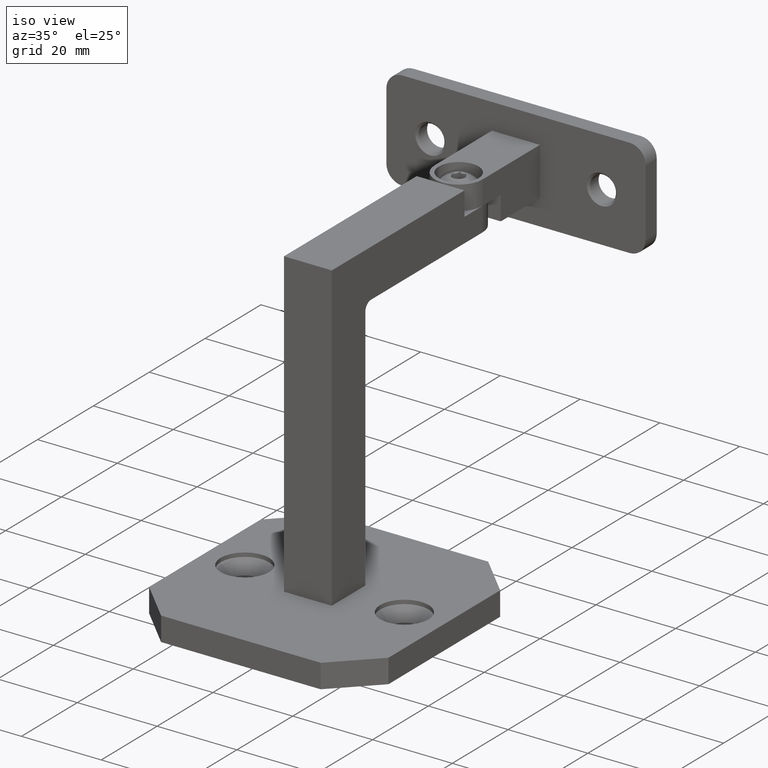
[diagram: clean part render]
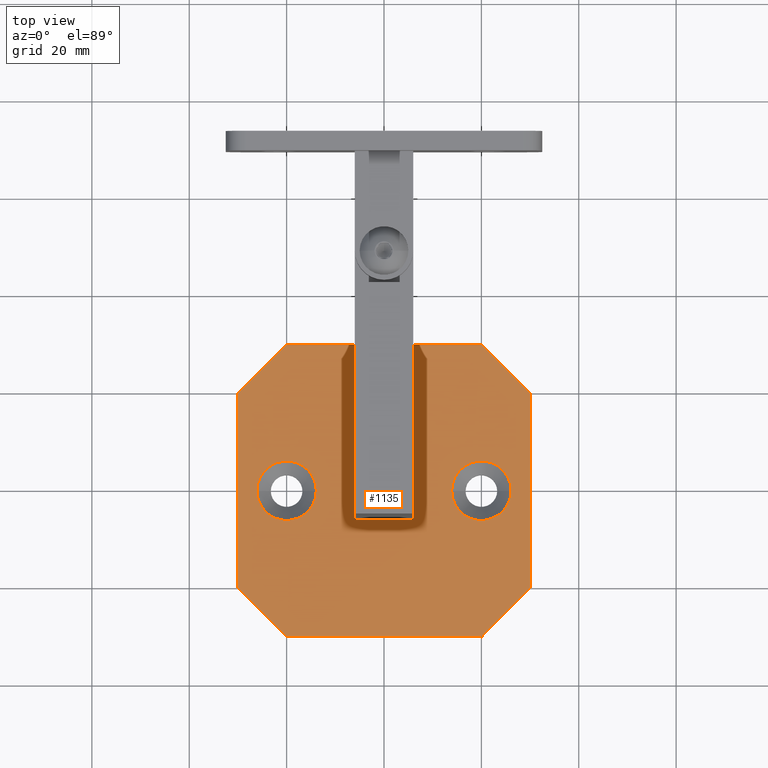
[diagram: tour spotlight — one face highlighted and labeled with its STEP entity id]
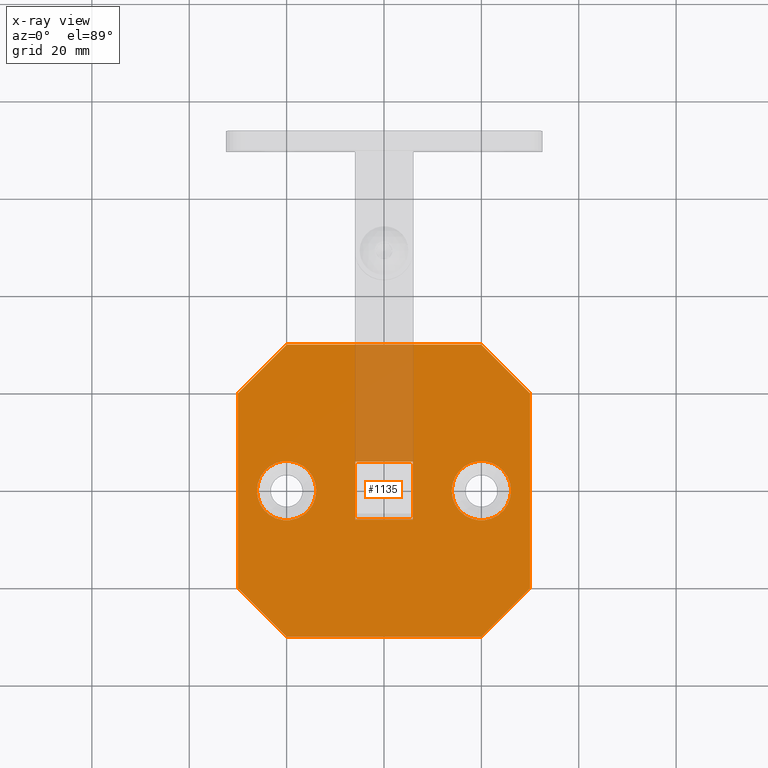
[diagram: x-ray of the same camera — body ghosted, this tour face saturated]
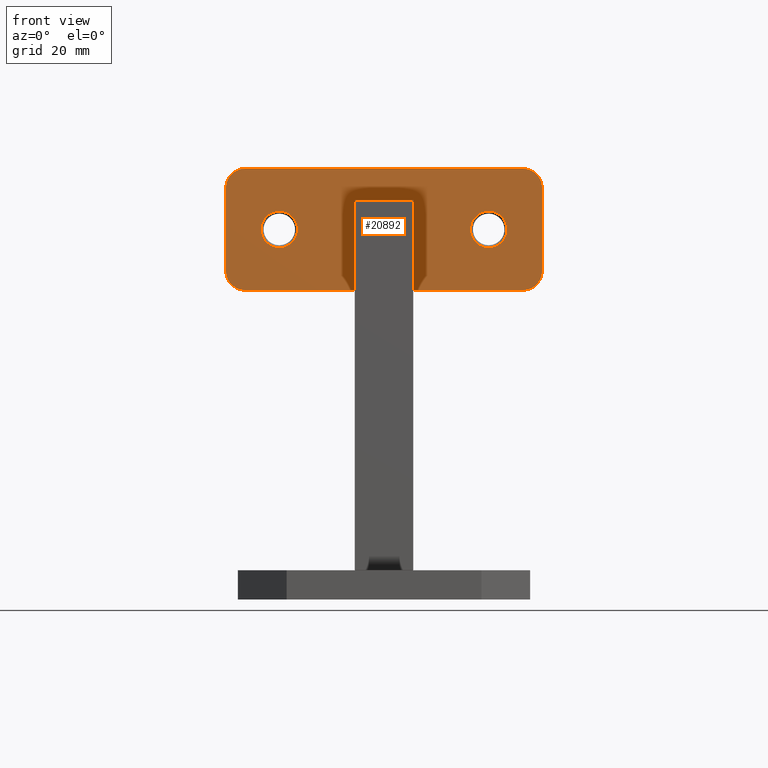
[diagram: tour spotlight — one face highlighted and labeled with its STEP entity id]
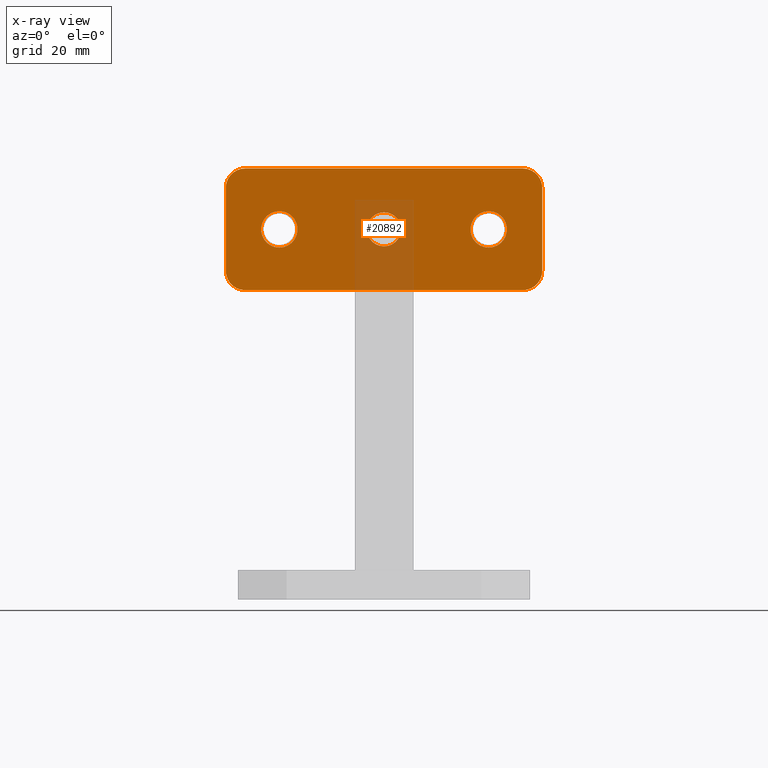
[diagram: x-ray of the same camera — body ghosted, this tour face saturated]
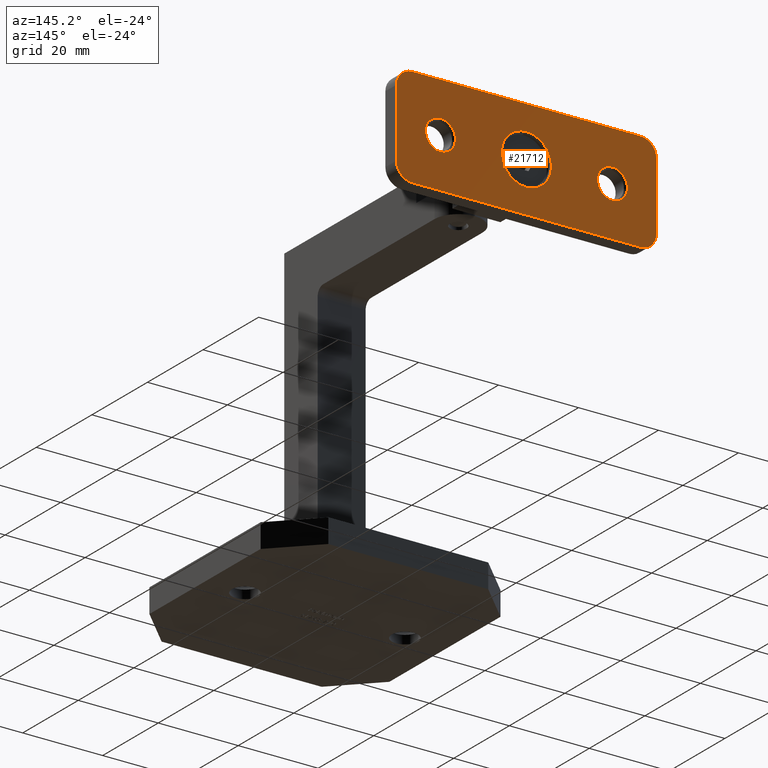
[diagram: tour spotlight — one face highlighted and labeled with its STEP entity id]
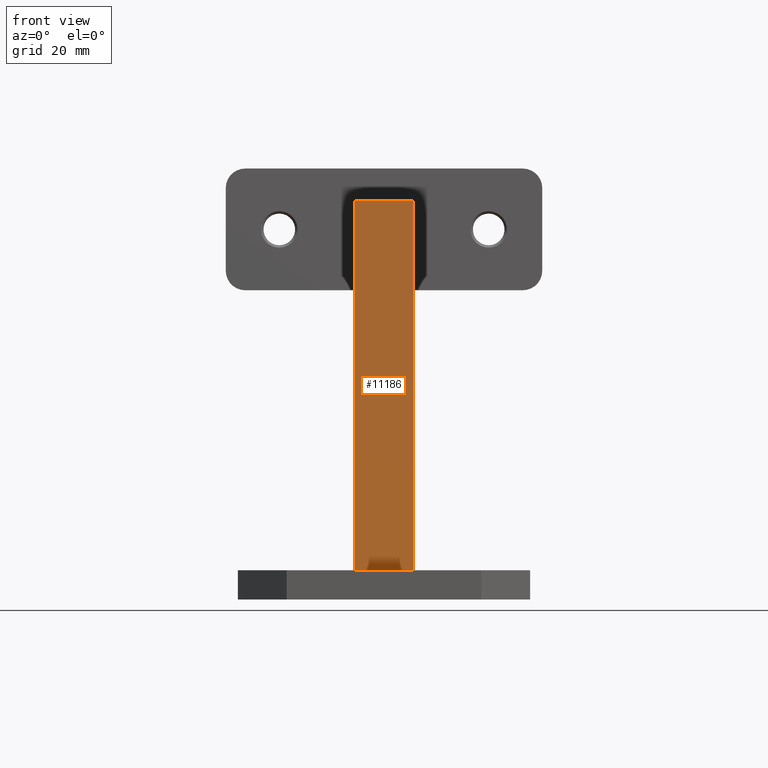
[diagram: tour spotlight — one face highlighted and labeled with its STEP entity id]
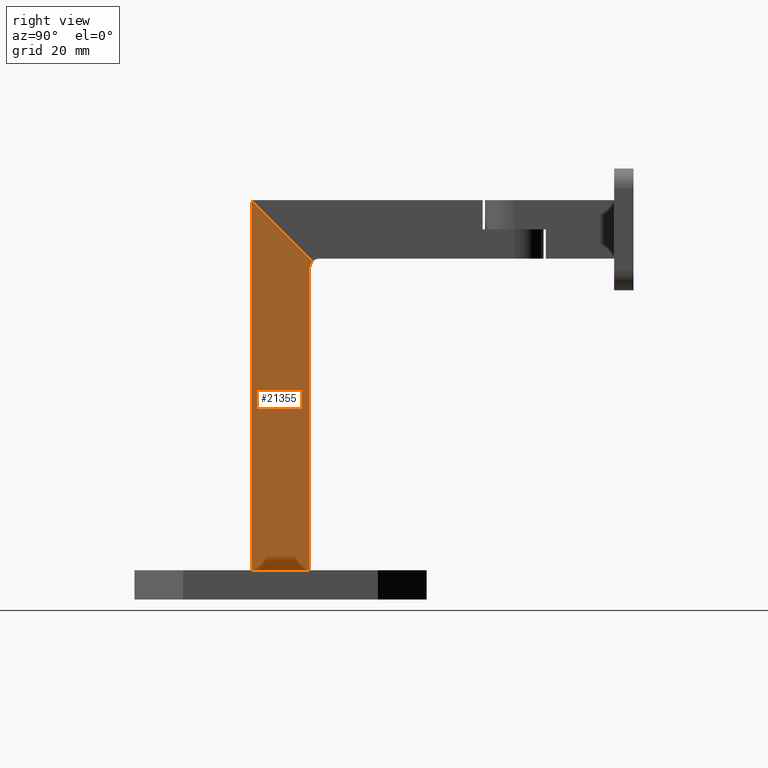
[diagram: tour spotlight — one face highlighted and labeled with its STEP entity id]
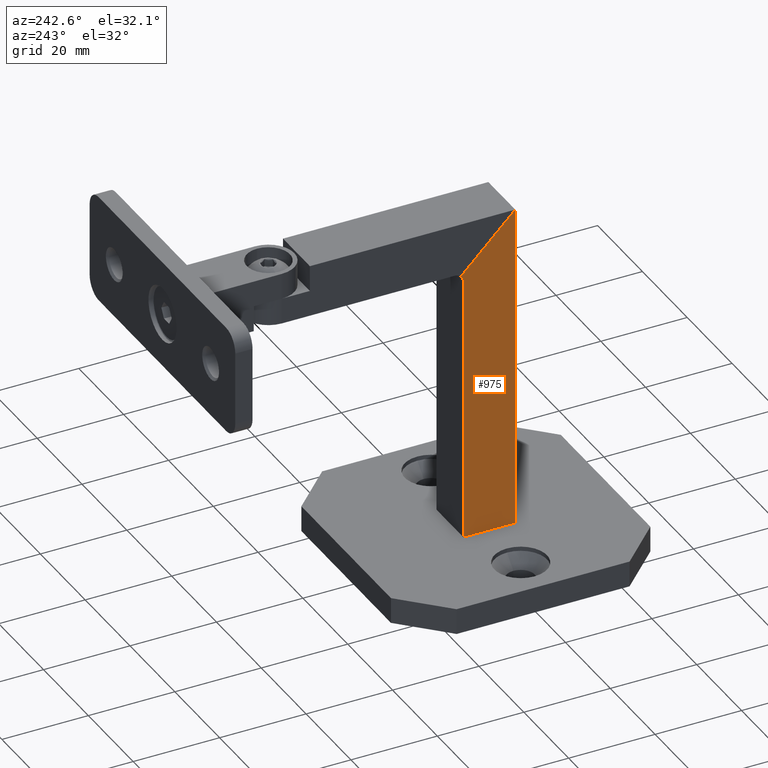
[diagram: tour spotlight — one face highlighted and labeled with its STEP entity id]
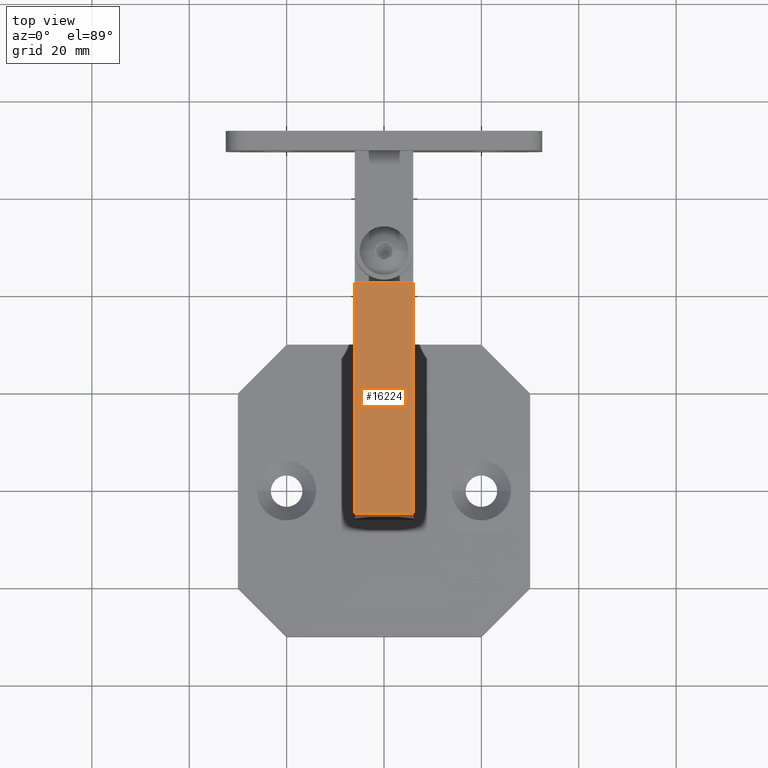
[diagram: tour spotlight — one face highlighted and labeled with its STEP entity id]
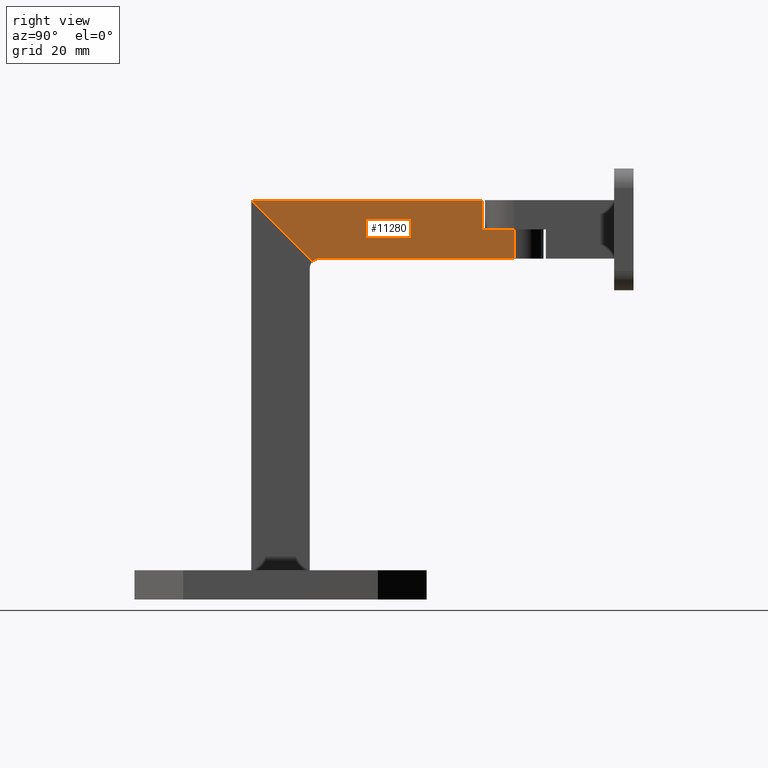
[diagram: tour spotlight — one face highlighted and labeled with its STEP entity id]
A machine part: a face-by-face anatomy tour. The part has 441 B-rep faces; the first image is the clean iso view, then the 8 largest visible faces are spotlighted one at a time (largest first), each with its STEP entity span.

Face 1 — top view, entity #1135. An x-ray twin of the same camera follows (body ghosted, this face saturated) — the face is partly hidden behind the body. In plain terms, the highlighted planar face has unit normal (0, 0, 1).
Definition (entity closure, byte-faithful):
#216 = VERTEX_POINT ( 'NONE', #20497 ) ;
#331 = EDGE_CURVE ( 'NONE', #9592, #14569, #17232, .T. ) ;
#814 = ORIENTED_EDGE ( 'NONE', *, *, #8448, .T. ) ;
#974 = DIRECTION ( 'NONE',  ( -1.000000000000000000, -0.000000000000000000, -0.000000000000000000 ) ) ;
#1135 = ADVANCED_FACE ( 'NONE', ( #6094, #15710, #4869, #12662 ), #6865, .T. ) ;
#1518 = AXIS2_PLACEMENT_3D ( 'NONE', #1523, #12965, #2642 ) ;
#1523 = CARTESIAN_POINT ( 'NONE',  ( 20.00000000000000000, 0.000000000000000000, 3.000000000000001776 ) ) ;
#1573 = CARTESIAN_POINT ( 'NONE',  ( 29.99999999999998579, 30.00000000000000711, 3.000000000000000000 ) ) ;
#1617 = EDGE_LOOP ( 'NONE', ( #24796, #814, #8797, #1944, #9276, #10733, #10919, #13337 ) ) ;
#1944 = ORIENTED_EDGE ( 'NONE', *, *, #23877, .T. ) ;
#2058 = CARTESIAN_POINT ( 'NONE',  ( 0.000000000000000000, 5.949999999999999289, 3.000000000000000444 ) ) ;
#2201 = DIRECTION ( 'NONE',  ( 1.000000000000000000, 0.000000000000000000, 0.000000000000000000 ) ) ;
#2315 = VERTEX_POINT ( 'NONE', #24493 ) ;
#2403 = EDGE_CURVE ( 'NONE', #3493, #21995, #20162, .T. ) ;
#2450 = DIRECTION ( 'NONE',  ( 1.000000000000000000, 0.000000000000000000, 0.000000000000000000 ) ) ;
#2461 = VECTOR ( 'NONE', #16916, 1000.000000000000000 ) ;
#2513 = VECTOR ( 'NONE', #17087, 1000.000000000000000 ) ;
#2642 = DIRECTION ( 'NONE',  ( 1.000000000000000000, 0.000000000000000000, 0.000000000000000000 ) ) ;
#2827 = CARTESIAN_POINT ( 'NONE',  ( -30.00000000000000711, -19.99999999999994671, 3.000000000000000000 ) ) ;
#3163 = CARTESIAN_POINT ( 'NONE',  ( -30.00000000000001066, 30.00000000000000711, 3.000000000000000000 ) ) ;
#3493 = VERTEX_POINT ( 'NONE', #11217 ) ;
#3655 = EDGE_CURVE ( 'NONE', #2315, #216, #13522, .T. ) ;
#4313 = CARTESIAN_POINT ( 'NONE',  ( 24.99999999999993250, -25.00000000000001066, 3.000000000000000000 ) ) ;
#4361 = EDGE_CURVE ( 'NONE', #23370, #8922, #14109, .T. ) ;
#4389 = ORIENTED_EDGE ( 'NONE', *, *, #2403, .F. ) ;
#4486 = CARTESIAN_POINT ( 'NONE',  ( -30.00000000000000711, -29.99999999999999645, 3.000000000000000000 ) ) ;
#4665 = CARTESIAN_POINT ( 'NONE',  ( 19.99999999999992539, -30.00000000000000000, 3.000000000000000000 ) ) ;
#4816 = DIRECTION ( 'NONE',  ( -1.000000000000000000, -0.000000000000000000, -0.000000000000000000 ) ) ;
#4869 = FACE_BOUND ( 'NONE', #17619, .T. ) ;
#5124 = DIRECTION ( 'NONE',  ( 1.000000000000000000, 0.000000000000000000, 0.000000000000000000 ) ) ;
#5131 = DIRECTION ( 'NONE',  ( 1.000000000000000000, 0.000000000000000000, 0.000000000000000000 ) ) ;
#5398 = VECTOR ( 'NONE', #974, 1000.000000000000000 ) ;
#5727 = VERTEX_POINT ( 'NONE', #4665 ) ;
#5891 = LINE ( 'NONE', #8282, #9781 ) ;
#5898 = CARTESIAN_POINT ( 'NONE',  ( -5.949999999999997513, -5.950000000000001066, 3.000000000000000444 ) ) ;
#5985 = DIRECTION ( 'NONE',  ( 1.445602896647339163E-16, 1.000000000000000000, 0.000000000000000000 ) ) ;
#5994 = AXIS2_PLACEMENT_3D ( 'NONE', #20353, #22186, #10694 ) ;
#6056 = CARTESIAN_POINT ( 'NONE',  ( -20.00000000000000000, 0.000000000000000000, 3.000000000000001776 ) ) ;
#6094 = FACE_BOUND ( 'NONE', #18479, .T. ) ;
#6641 = EDGE_CURVE ( 'NONE', #7022, #22026, #10716, .T. ) ;
#6865 = PLANE ( 'NONE',  #5994 ) ;
#6915 = DIRECTION ( 'NONE',  ( -0.000000000000000000, -0.000000000000000000, 1.000000000000000000 ) ) ;
#6941 = EDGE_CURVE ( 'NONE', #7743, #9592, #14038, .T. ) ;
#7022 = VERTEX_POINT ( 'NONE', #19512 ) ;
#7743 = VERTEX_POINT ( 'NONE', #11536 ) ;
#8225 = DIRECTION ( 'NONE',  ( -0.000000000000000000, -0.000000000000000000, 1.000000000000000000 ) ) ;
#8282 = CARTESIAN_POINT ( 'NONE',  ( -24.99999999999995737, 25.00000000000006395, 3.000000000000000000 ) ) ;
#8448 = EDGE_CURVE ( 'NONE', #5727, #15167, #16276, .T. ) ;
#8667 = LINE ( 'NONE', #5898, #21848 ) ;
#8797 = ORIENTED_EDGE ( 'NONE', *, *, #9847, .T. ) ;
#8920 = VERTEX_POINT ( 'NONE', #21147 ) ;
#8922 = VERTEX_POINT ( 'NONE', #2058 ) ;
#9276 = ORIENTED_EDGE ( 'NONE', *, *, #16229, .T. ) ;
#9286 = DIRECTION ( 'NONE',  ( -0.7071067811865461294, 0.7071067811865489050, -0.000000000000000000 ) ) ;
#9537 = ORIENTED_EDGE ( 'NONE', *, *, #6641, .T. ) ;
#9592 = VERTEX_POINT ( 'NONE', #2827 ) ;
#9781 = VECTOR ( 'NONE', #17617, 1000.000000000000114 ) ;
#9813 = EDGE_CURVE ( 'NONE', #23370, #7022, #22235, .T. ) ;
#9846 = LINE ( 'NONE', #12211, #19739 ) ;
#9847 = EDGE_CURVE ( 'NONE', #15167, #12133, #17782, .T. ) ;
#9870 = VECTOR ( 'NONE', #9286, 1000.000000000000114 ) ;
#9902 = CARTESIAN_POINT ( 'NONE',  ( 19.99999999999997513, 30.00000000000001421, 3.000000000000000000 ) ) ;
#10133 = ORIENTED_EDGE ( 'NONE', *, *, #10407, .F. ) ;
#10212 = CARTESIAN_POINT ( 'NONE',  ( -5.949999999999997513, -5.950000000000001066, 3.000000000000000444 ) ) ;
#10407 = EDGE_CURVE ( 'NONE', #21995, #3493, #24011, .T. ) ;
#10504 = DIRECTION ( 'NONE',  ( 1.000000000000000000, 0.000000000000000000, 0.000000000000000000 ) ) ;
#10609 = CARTESIAN_POINT ( 'NONE',  ( 29.99999999999998934, 19.99999999999997513, 3.000000000000000000 ) ) ;
#10694 = DIRECTION ( 'NONE',  ( 1.000000000000000000, 0.000000000000000000, 0.000000000000000000 ) ) ;
#10712 = ORIENTED_EDGE ( 'NONE', *, *, #22757, .F. ) ;
#10716 = LINE ( 'NONE', #21922, #19754 ) ;
#10733 = ORIENTED_EDGE ( 'NONE', *, *, #18185, .T. ) ;
#10919 = ORIENTED_EDGE ( 'NONE', *, *, #6941, .T. ) ;
#11217 = CARTESIAN_POINT ( 'NONE',  ( 26.10000000000000142, 0.000000000000000000, 3.000000000000001776 ) ) ;
#11252 = DIRECTION ( 'NONE',  ( 5.782411586589357392E-17, -1.000000000000000000, 0.000000000000000000 ) ) ;
#11526 = CARTESIAN_POINT ( 'NONE',  ( 5.950000000000003730, 5.949999999999999289, 3.000000000000000444 ) ) ;
#11536 = CARTESIAN_POINT ( 'NONE',  ( -30.00000000000001066, 20.00000000000003197, 3.000000000000000000 ) ) ;
#11589 = CARTESIAN_POINT ( 'NONE',  ( -30.00000000000001066, 30.00000000000000711, 3.000000000000000000 ) ) ;
#12020 = DIRECTION ( 'NONE',  ( 0.7071067811865486830, 0.7071067811865464625, -0.000000000000000000 ) ) ;
#12036 = VECTOR ( 'NONE', #14909, 1000.000000000000000 ) ;
#12133 = VERTEX_POINT ( 'NONE', #10609 ) ;
#12211 = CARTESIAN_POINT ( 'NONE',  ( -5.949999999999995737, 5.949999999999995737, 3.000000000000000444 ) ) ;
#12521 = CARTESIAN_POINT ( 'NONE',  ( 6.082703296142693894, 5.949999999999999289, 3.000000000000000444 ) ) ;
#12662 = FACE_OUTER_BOUND ( 'NONE', #1617, .T. ) ;
#12738 = CARTESIAN_POINT ( 'NONE',  ( -20.00000000000000000, 0.000000000000000000, 3.000000000000001776 ) ) ;
#12823 = DIRECTION ( 'NONE',  ( -0.000000000000000000, -0.000000000000000000, 1.000000000000000000 ) ) ;
#12965 = DIRECTION ( 'NONE',  ( -0.000000000000000000, -0.000000000000000000, 1.000000000000000000 ) ) ;
#13239 = EDGE_CURVE ( 'NONE', #22026, #22443, #8667, .T. ) ;
#13337 = ORIENTED_EDGE ( 'NONE', *, *, #331, .T. ) ;
#13522 = CIRCLE ( 'NONE', #22232, 6.100000000000001421 ) ;
#13678 = AXIS2_PLACEMENT_3D ( 'NONE', #12738, #12823, #5124 ) ;
#14038 = LINE ( 'NONE', #11589, #19151 ) ;
#14109 = LINE ( 'NONE', #12521, #5398 ) ;
#14569 = VERTEX_POINT ( 'NONE', #17420 ) ;
#14909 = DIRECTION ( 'NONE',  ( -1.445602896647338424E-16, -1.000000000000000000, 0.000000000000000000 ) ) ;
#15154 = CARTESIAN_POINT ( 'NONE',  ( 5.950000000000003730, 5.949999999999999289, 3.000000000000000444 ) ) ;
#15167 = VERTEX_POINT ( 'NONE', #17389 ) ;
#15710 = FACE_BOUND ( 'NONE', #22178, .T. ) ;
#15755 = CARTESIAN_POINT ( 'NONE',  ( 13.89999999999999858, 7.470345474798856265E-16, 3.000000000000001776 ) ) ;
#16164 = CIRCLE ( 'NONE', #13678, 6.100000000000001421 ) ;
#16229 = EDGE_CURVE ( 'NONE', #20311, #8920, #22407, .T. ) ;
#16276 = LINE ( 'NONE', #4313, #22253 ) ;
#16795 = EDGE_CURVE ( 'NONE', #14569, #5727, #22698, .T. ) ;
#16916 = DIRECTION ( 'NONE',  ( -1.734723475976807094E-16, 1.000000000000000000, -0.000000000000000000 ) ) ;
#17087 = DIRECTION ( 'NONE',  ( 0.7071067811865459074, -0.7071067811865491270, 0.000000000000000000 ) ) ;
#17232 = LINE ( 'NONE', #24756, #2513 ) ;
#17360 = VECTOR ( 'NONE', #4816, 1000.000000000000000 ) ;
#17389 = CARTESIAN_POINT ( 'NONE',  ( 29.99999999999999645, -19.99999999999995737, 3.000000000000000000 ) ) ;
#17420 = CARTESIAN_POINT ( 'NONE',  ( -20.00000000000000355, -30.00000000000000000, 3.000000000000000000 ) ) ;
#17617 = DIRECTION ( 'NONE',  ( -0.7071067811865489050, -0.7071067811865460184, -0.000000000000000000 ) ) ;
#17619 = EDGE_LOOP ( 'NONE', ( #4389, #10133 ) ) ;
#17782 = LINE ( 'NONE', #1573, #2461 ) ;
#18151 = ORIENTED_EDGE ( 'NONE', *, *, #13239, .T. ) ;
#18185 = EDGE_CURVE ( 'NONE', #8920, #7743, #5891, .T. ) ;
#18274 = LINE ( 'NONE', #20748, #9870 ) ;
#18399 = CARTESIAN_POINT ( 'NONE',  ( 20.00000000000000000, 0.000000000000000000, 3.000000000000001776 ) ) ;
#18479 = EDGE_LOOP ( 'NONE', ( #24704, #9537, #18151, #24713, #21859 ) ) ;
#18715 = ORIENTED_EDGE ( 'NONE', *, *, #3655, .F. ) ;
#19151 = VECTOR ( 'NONE', #11252, 1000.000000000000000 ) ;
#19433 = VECTOR ( 'NONE', #10504, 1000.000000000000000 ) ;
#19502 = CARTESIAN_POINT ( 'NONE',  ( -5.949999999999995737, 5.949999999999995737, 3.000000000000000444 ) ) ;
#19512 = CARTESIAN_POINT ( 'NONE',  ( 5.950000000000001954, -5.950000000000009059, 3.000000000000000444 ) ) ;
#19739 = VECTOR ( 'NONE', #2450, 1000.000000000000000 ) ;
#19754 = VECTOR ( 'NONE', #20174, 1000.000000000000000 ) ;
#20162 = CIRCLE ( 'NONE', #1518, 6.100000000000001421 ) ;
#20174 = DIRECTION ( 'NONE',  ( -1.000000000000000000, 7.228014483236695569E-16, 0.000000000000000000 ) ) ;
#20311 = VERTEX_POINT ( 'NONE', #9902 ) ;
#20353 = CARTESIAN_POINT ( 'NONE',  ( 0.000000000000000000, 0.000000000000000000, 3.000000000000000000 ) ) ;
#20497 = CARTESIAN_POINT ( 'NONE',  ( -26.10000000000000142, 7.470345474798859223E-16, 3.000000000000001776 ) ) ;
#20748 = CARTESIAN_POINT ( 'NONE',  ( 25.00000000000004263, 24.99999999999993960, 3.000000000000000000 ) ) ;
#21147 = CARTESIAN_POINT ( 'NONE',  ( -19.99999999999999289, 30.00000000000000711, 3.000000000000000000 ) ) ;
#21848 = VECTOR ( 'NONE', #5985, 1000.000000000000000 ) ;
#21859 = ORIENTED_EDGE ( 'NONE', *, *, #4361, .F. ) ;
#21922 = CARTESIAN_POINT ( 'NONE',  ( 5.950000000000001954, -5.950000000000009059, 3.000000000000000444 ) ) ;
#21995 = VERTEX_POINT ( 'NONE', #15755 ) ;
#22026 = VERTEX_POINT ( 'NONE', #10212 ) ;
#22178 = EDGE_LOOP ( 'NONE', ( #18715, #10712 ) ) ;
#22186 = DIRECTION ( 'NONE',  ( -0.000000000000000000, 0.000000000000000000, 1.000000000000000000 ) ) ;
#22232 = AXIS2_PLACEMENT_3D ( 'NONE', #6056, #8225, #2201 ) ;
#22235 = LINE ( 'NONE', #15154, #12036 ) ;
#22253 = VECTOR ( 'NONE', #12020, 1000.000000000000000 ) ;
#22407 = LINE ( 'NONE', #3163, #17360 ) ;
#22443 = VERTEX_POINT ( 'NONE', #19502 ) ;
#22698 = LINE ( 'NONE', #4486, #19433 ) ;
#22757 = EDGE_CURVE ( 'NONE', #216, #2315, #16164, .T. ) ;
#23317 = AXIS2_PLACEMENT_3D ( 'NONE', #18399, #6915, #5131 ) ;
#23370 = VERTEX_POINT ( 'NONE', #11526 ) ;
#23877 = EDGE_CURVE ( 'NONE', #12133, #20311, #18274, .T. ) ;
#24011 = CIRCLE ( 'NONE', #23317, 6.100000000000001421 ) ;
#24493 = CARTESIAN_POINT ( 'NONE',  ( -13.89999999999999858, 0.000000000000000000, 3.000000000000001776 ) ) ;
#24625 = EDGE_CURVE ( 'NONE', #22443, #8922, #9846, .T. ) ;
#24704 = ORIENTED_EDGE ( 'NONE', *, *, #9813, .T. ) ;
#24713 = ORIENTED_EDGE ( 'NONE', *, *, #24625, .T. ) ;
#24756 = CARTESIAN_POINT ( 'NONE',  ( -25.00000000000004619, -24.99999999999993250, 3.000000000000000000 ) ) ;
#24796 = ORIENTED_EDGE ( 'NONE', *, *, #16795, .T. ) ;

Face 2 — front view, entity #20892. An x-ray twin of the same camera follows (body ghosted, this face saturated) — the face is partly hidden behind the body. In plain terms, the highlighted planar face has unit normal (0, 1, 0).
Definition (entity closure, byte-faithful):
#59 = CIRCLE ( 'NONE', #7936, 3.500000000000010214 ) ;
#224 = VECTOR ( 'NONE', #10682, 1000.000000000000000 ) ;
#246 = CARTESIAN_POINT ( 'NONE',  ( -32.50000000000000000, -2.000000000000001776, -8.500000000000007105 ) ) ;
#625 = CIRCLE ( 'NONE', #2178, 3.500000000000010214 ) ;
#1057 = EDGE_CURVE ( 'NONE', #14716, #22155, #9395, .T. ) ;
#1241 = CARTESIAN_POINT ( 'NONE',  ( -32.50000000000000000, -2.000000000000001776, 12.49999999999999645 ) ) ;
#1331 = AXIS2_PLACEMENT_3D ( 'NONE', #5878, #19229, #7726 ) ;
#1341 = CIRCLE ( 'NONE', #12952, 3.749999999999989342 ) ;
#1610 = VERTEX_POINT ( 'NONE', #5357 ) ;
#1638 = ORIENTED_EDGE ( 'NONE', *, *, #21866, .F. ) ;
#1904 = DIRECTION ( 'NONE',  ( -0.000000000000000000, -1.000000000000000000, -0.000000000000000000 ) ) ;
#1962 = EDGE_CURVE ( 'NONE', #11704, #19097, #59, .T. ) ;
#2177 = DIRECTION ( 'NONE',  ( 0.000000000000000000, 0.000000000000000000, 1.000000000000000000 ) ) ;
#2178 = AXIS2_PLACEMENT_3D ( 'NONE', #4080, #17530, #6030 ) ;
#2370 = DIRECTION ( 'NONE',  ( 0.000000000000000000, 1.000000000000000000, 0.000000000000000000 ) ) ;
#2538 = ORIENTED_EDGE ( 'NONE', *, *, #13347, .F. ) ;
#2688 = CIRCLE ( 'NONE', #20632, 4.000000000000000000 ) ;
#2815 = VERTEX_POINT ( 'NONE', #13457 ) ;
#3015 = CARTESIAN_POINT ( 'NONE',  ( -32.50000000000000000, -2.000000000000001776, -12.50000000000000355 ) ) ;
#3830 = CARTESIAN_POINT ( 'NONE',  ( 21.50000000000000000, -2.000000000000001776, 0.000000000000000000 ) ) ;
#3907 = DIRECTION ( 'NONE',  ( 0.000000000000000000, 0.000000000000000000, 1.000000000000000000 ) ) ;
#3930 = EDGE_CURVE ( 'NONE', #10448, #8033, #12001, .T. ) ;
#3960 = EDGE_CURVE ( 'NONE', #19097, #11704, #625, .T. ) ;
#4080 = CARTESIAN_POINT ( 'NONE',  ( 0.000000000000000000, -2.000000000000001776, 0.000000000000000000 ) ) ;
#4107 = CARTESIAN_POINT ( 'NONE',  ( -21.50000000000000000, -2.000000000000001776, 3.749999999999989342 ) ) ;
#4269 = CARTESIAN_POINT ( 'NONE',  ( -21.50000000000000000, -2.000000000000001776, -3.749999999999989342 ) ) ;
#4351 = ORIENTED_EDGE ( 'NONE', *, *, #16264, .F. ) ;
#4468 = CARTESIAN_POINT ( 'NONE',  ( 4.286263797015748921E-16, -2.000000000000001776, -3.500000000000010658 ) ) ;
#4575 = EDGE_CURVE ( 'NONE', #9491, #22155, #2688, .T. ) ;
#5134 = CIRCLE ( 'NONE', #9680, 4.000000000000000000 ) ;
#5357 = CARTESIAN_POINT ( 'NONE',  ( 21.50000000000000000, -2.000000000000001776, -3.749999999999989342 ) ) ;
#5649 = DIRECTION ( 'NONE',  ( 0.000000000000000000, 0.000000000000000000, 1.000000000000000000 ) ) ;
#5712 = VECTOR ( 'NONE', #19414, 1000.000000000000000 ) ;
#5835 = ORIENTED_EDGE ( 'NONE', *, *, #19896, .T. ) ;
#5878 = CARTESIAN_POINT ( 'NONE',  ( 28.49999999999999645, -2.000000000000001776, -8.500000000000007105 ) ) ;
#5914 = ORIENTED_EDGE ( 'NONE', *, *, #3960, .T. ) ;
#5947 = DIRECTION ( 'NONE',  ( -0.000000000000000000, -1.000000000000000000, -0.000000000000000000 ) ) ;
#6000 = CARTESIAN_POINT ( 'NONE',  ( -32.50000000000000000, -2.000000000000001776, -12.50000000000000355 ) ) ;
#6030 = DIRECTION ( 'NONE',  ( 0.000000000000000000, 0.000000000000000000, 1.000000000000000000 ) ) ;
#6311 = LINE ( 'NONE', #6000, #5712 ) ;
#6392 = ORIENTED_EDGE ( 'NONE', *, *, #8808, .T. ) ;
#6610 = AXIS2_PLACEMENT_3D ( 'NONE', #11424, #21016, #7775 ) ;
#6770 = DIRECTION ( 'NONE',  ( -1.000000000000000000, -0.000000000000000000, -0.000000000000000000 ) ) ;
#7579 = AXIS2_PLACEMENT_3D ( 'NONE', #18989, #20812, #5649 ) ;
#7726 = DIRECTION ( 'NONE',  ( 0.000000000000000000, 0.000000000000000000, 1.000000000000000000 ) ) ;
#7775 = DIRECTION ( 'NONE',  ( 0.000000000000000000, 0.000000000000000000, 1.000000000000000000 ) ) ;
#7936 = AXIS2_PLACEMENT_3D ( 'NONE', #19788, #7965, #17540 ) ;
#7965 = DIRECTION ( 'NONE',  ( -0.000000000000000000, 1.000000000000000000, -0.000000000000000000 ) ) ;
#8033 = VERTEX_POINT ( 'NONE', #14570 ) ;
#8223 = PLANE ( 'NONE',  #12371 ) ;
#8518 = CARTESIAN_POINT ( 'NONE',  ( -28.50000000000000000, -2.000000000000001776, -12.50000000000000355 ) ) ;
#8701 = DIRECTION ( 'NONE',  ( 0.000000000000000000, 0.000000000000000000, 1.000000000000000000 ) ) ;
#8808 = EDGE_CURVE ( 'NONE', #22974, #24539, #23470, .T. ) ;
#8954 = CARTESIAN_POINT ( 'NONE',  ( 21.50000000000000000, -2.000000000000001776, 0.000000000000000000 ) ) ;
#9395 = LINE ( 'NONE', #3015, #24670 ) ;
#9491 = VERTEX_POINT ( 'NONE', #246 ) ;
#9680 = AXIS2_PLACEMENT_3D ( 'NONE', #19338, #13363, #9779 ) ;
#9779 = DIRECTION ( 'NONE',  ( 2.602085213965210642E-15, 0.000000000000000000, 1.000000000000000000 ) ) ;
#9992 = EDGE_CURVE ( 'NONE', #24539, #22974, #22525, .T. ) ;
#9994 = EDGE_CURVE ( 'NONE', #18004, #12194, #5134, .T. ) ;
#10448 = VERTEX_POINT ( 'NONE', #10903 ) ;
#10562 = CARTESIAN_POINT ( 'NONE',  ( 32.50000000000000000, -2.000000000000001776, -12.50000000000000355 ) ) ;
#10682 = DIRECTION ( 'NONE',  ( 1.000000000000000000, 0.000000000000000000, 0.000000000000000000 ) ) ;
#10739 = CIRCLE ( 'NONE', #1331, 4.000000000000000000 ) ;
#10863 = CARTESIAN_POINT ( 'NONE',  ( 0.000000000000000000, -2.000000000000001776, 3.500000000000010214 ) ) ;
#10903 = CARTESIAN_POINT ( 'NONE',  ( -28.50000000000000000, -2.000000000000001776, 12.49999999999999645 ) ) ;
#11244 = CARTESIAN_POINT ( 'NONE',  ( -28.50000000000000000, -2.000000000000001776, -8.500000000000007105 ) ) ;
#11424 = CARTESIAN_POINT ( 'NONE',  ( -21.50000000000000000, -2.000000000000001776, 0.000000000000000000 ) ) ;
#11704 = VERTEX_POINT ( 'NONE', #10863 ) ;
#11893 = CARTESIAN_POINT ( 'NONE',  ( 0.000000000000000000, -2.000000000000001776, 0.000000000000000000 ) ) ;
#12001 = CIRCLE ( 'NONE', #16793, 4.000000000000000000 ) ;
#12055 = DIRECTION ( 'NONE',  ( 0.000000000000000000, -0.000000000000000000, 1.000000000000000000 ) ) ;
#12192 = ORIENTED_EDGE ( 'NONE', *, *, #3930, .T. ) ;
#12194 = VERTEX_POINT ( 'NONE', #20357 ) ;
#12371 = AXIS2_PLACEMENT_3D ( 'NONE', #11893, #2370, #12055 ) ;
#12581 = AXIS2_PLACEMENT_3D ( 'NONE', #8954, #22334, #8701 ) ;
#12952 = AXIS2_PLACEMENT_3D ( 'NONE', #3830, #13623, #13367 ) ;
#13089 = ORIENTED_EDGE ( 'NONE', *, *, #13572, .T. ) ;
#13092 = ORIENTED_EDGE ( 'NONE', *, *, #9992, .T. ) ;
#13347 = EDGE_CURVE ( 'NONE', #18004, #20272, #23940, .T. ) ;
#13363 = DIRECTION ( 'NONE',  ( -0.000000000000000000, -1.000000000000000000, -0.000000000000000000 ) ) ;
#13367 = DIRECTION ( 'NONE',  ( 0.000000000000000000, 0.000000000000000000, 1.000000000000000000 ) ) ;
#13457 = CARTESIAN_POINT ( 'NONE',  ( 21.50000000000000000, -2.000000000000001776, 3.749999999999989342 ) ) ;
#13566 = CARTESIAN_POINT ( 'NONE',  ( 32.50000000000000000, -2.000000000000001776, 8.499999999999992895 ) ) ;
#13572 = EDGE_CURVE ( 'NONE', #14716, #20272, #10739, .T. ) ;
#13623 = DIRECTION ( 'NONE',  ( 0.000000000000000000, 1.000000000000000000, 0.000000000000000000 ) ) ;
#14570 = CARTESIAN_POINT ( 'NONE',  ( -32.50000000000000000, -2.000000000000001776, 8.499999999999992895 ) ) ;
#14716 = VERTEX_POINT ( 'NONE', #21947 ) ;
#14982 = VECTOR ( 'NONE', #16539, 1000.000000000000000 ) ;
#16246 = EDGE_LOOP ( 'NONE', ( #6392, #13092 ) ) ;
#16264 = EDGE_CURVE ( 'NONE', #10448, #12194, #17031, .T. ) ;
#16292 = EDGE_CURVE ( 'NONE', #2815, #1610, #18233, .T. ) ;
#16473 = EDGE_LOOP ( 'NONE', ( #5835, #20147 ) ) ;
#16539 = DIRECTION ( 'NONE',  ( -0.000000000000000000, -0.000000000000000000, -1.000000000000000000 ) ) ;
#16550 = EDGE_LOOP ( 'NONE', ( #20060, #5914 ) ) ;
#16793 = AXIS2_PLACEMENT_3D ( 'NONE', #23033, #5947, #2177 ) ;
#16915 = ORIENTED_EDGE ( 'NONE', *, *, #4575, .T. ) ;
#17031 = LINE ( 'NONE', #1241, #224 ) ;
#17326 = ORIENTED_EDGE ( 'NONE', *, *, #1057, .F. ) ;
#17530 = DIRECTION ( 'NONE',  ( -0.000000000000000000, 1.000000000000000000, -0.000000000000000000 ) ) ;
#17540 = DIRECTION ( 'NONE',  ( 0.000000000000000000, 0.000000000000000000, 1.000000000000000000 ) ) ;
#18004 = VERTEX_POINT ( 'NONE', #13566 ) ;
#18233 = CIRCLE ( 'NONE', #12581, 3.749999999999989342 ) ;
#18989 = CARTESIAN_POINT ( 'NONE',  ( -21.50000000000000000, -2.000000000000001776, 0.000000000000000000 ) ) ;
#19045 = FACE_BOUND ( 'NONE', #16246, .T. ) ;
#19097 = VERTEX_POINT ( 'NONE', #4468 ) ;
#19227 = CARTESIAN_POINT ( 'NONE',  ( 32.50000000000000000, -2.000000000000001776, -8.500000000000007105 ) ) ;
#19229 = DIRECTION ( 'NONE',  ( -0.000000000000000000, -1.000000000000000000, -0.000000000000000000 ) ) ;
#19338 = CARTESIAN_POINT ( 'NONE',  ( 28.50000000000000000, -2.000000000000001776, 8.499999999999992895 ) ) ;
#19414 = DIRECTION ( 'NONE',  ( 0.000000000000000000, 0.000000000000000000, 1.000000000000000000 ) ) ;
#19788 = CARTESIAN_POINT ( 'NONE',  ( 0.000000000000000000, -2.000000000000001776, 0.000000000000000000 ) ) ;
#19896 = EDGE_CURVE ( 'NONE', #1610, #2815, #1341, .T. ) ;
#20060 = ORIENTED_EDGE ( 'NONE', *, *, #1962, .T. ) ;
#20147 = ORIENTED_EDGE ( 'NONE', *, *, #16292, .T. ) ;
#20229 = FACE_BOUND ( 'NONE', #16550, .T. ) ;
#20272 = VERTEX_POINT ( 'NONE', #19227 ) ;
#20357 = CARTESIAN_POINT ( 'NONE',  ( 28.49999999999999645, -2.000000000000001776, 12.49999999999999645 ) ) ;
#20632 = AXIS2_PLACEMENT_3D ( 'NONE', #11244, #1904, #3907 ) ;
#20812 = DIRECTION ( 'NONE',  ( 0.000000000000000000, 1.000000000000000000, 0.000000000000000000 ) ) ;
#20892 = ADVANCED_FACE ( 'NONE', ( #20229, #21735, #19045, #22919 ), #8223, .F. ) ;
#21016 = DIRECTION ( 'NONE',  ( 0.000000000000000000, 1.000000000000000000, 0.000000000000000000 ) ) ;
#21409 = ORIENTED_EDGE ( 'NONE', *, *, #9994, .T. ) ;
#21735 = FACE_BOUND ( 'NONE', #16473, .T. ) ;
#21866 = EDGE_CURVE ( 'NONE', #9491, #8033, #6311, .T. ) ;
#21947 = CARTESIAN_POINT ( 'NONE',  ( 28.49999999999999645, -2.000000000000001776, -12.50000000000000355 ) ) ;
#22155 = VERTEX_POINT ( 'NONE', #8518 ) ;
#22334 = DIRECTION ( 'NONE',  ( 0.000000000000000000, 1.000000000000000000, 0.000000000000000000 ) ) ;
#22525 = CIRCLE ( 'NONE', #6610, 3.749999999999989342 ) ;
#22919 = FACE_OUTER_BOUND ( 'NONE', #23599, .T. ) ;
#22974 = VERTEX_POINT ( 'NONE', #4269 ) ;
#23033 = CARTESIAN_POINT ( 'NONE',  ( -28.50000000000000000, -2.000000000000001776, 8.499999999999992895 ) ) ;
#23470 = CIRCLE ( 'NONE', #7579, 3.749999999999989342 ) ;
#23599 = EDGE_LOOP ( 'NONE', ( #4351, #12192, #1638, #16915, #17326, #13089, #2538, #21409 ) ) ;
#23940 = LINE ( 'NONE', #10562, #14982 ) ;
#24539 = VERTEX_POINT ( 'NONE', #4107 ) ;
#24670 = VECTOR ( 'NONE', #6770, 1000.000000000000000 ) ;

Face 3 — auxiliary view, entity #21712. In plain terms, the highlighted planar face has unit normal (0, 1, 0).
Definition (entity closure, byte-faithful):
#155 = VECTOR ( 'NONE', #21450, 1000.000000000000000 ) ;
#261 = ORIENTED_EDGE ( 'NONE', *, *, #18933, .T. ) ;
#741 = CARTESIAN_POINT ( 'NONE',  ( 28.49999999999999645, 2.000000000000001776, -8.500000000000007105 ) ) ;
#912 = FACE_BOUND ( 'NONE', #15753, .T. ) ;
#947 = CARTESIAN_POINT ( 'NONE',  ( 7.654042494670957606E-16, 2.000000000000001776, -6.250000000000000000 ) ) ;
#1200 = CARTESIAN_POINT ( 'NONE',  ( -28.50000000000000000, 2.000000000000001776, -8.500000000000007105 ) ) ;
#1407 = VERTEX_POINT ( 'NONE', #23645 ) ;
#1443 = CARTESIAN_POINT ( 'NONE',  ( 28.49999999999999645, 2.000000000000001776, -12.50000000000000355 ) ) ;
#1748 = VECTOR ( 'NONE', #19928, 1000.000000000000000 ) ;
#1824 = CIRCLE ( 'NONE', #8385, 4.000000000000000000 ) ;
#1882 = EDGE_CURVE ( 'NONE', #21482, #21424, #21943, .T. ) ;
#2135 = FACE_OUTER_BOUND ( 'NONE', #17846, .T. ) ;
#2378 = AXIS2_PLACEMENT_3D ( 'NONE', #11661, #21150, #13595 ) ;
#2435 = CARTESIAN_POINT ( 'NONE',  ( -28.50000000000000000, 2.000000000000001776, 12.49999999999999645 ) ) ;
#2754 = EDGE_CURVE ( 'NONE', #15613, #4442, #15668, .T. ) ;
#2850 = VERTEX_POINT ( 'NONE', #2435 ) ;
#2856 = DIRECTION ( 'NONE',  ( 0.000000000000000000, 0.000000000000000000, 1.000000000000000000 ) ) ;
#2897 = EDGE_CURVE ( 'NONE', #1407, #12214, #17158, .T. ) ;
#2958 = CARTESIAN_POINT ( 'NONE',  ( -32.50000000000000000, 2.000000000000001776, -12.50000000000000355 ) ) ;
#3143 = ORIENTED_EDGE ( 'NONE', *, *, #16086, .T. ) ;
#3221 = VERTEX_POINT ( 'NONE', #947 ) ;
#3523 = DIRECTION ( 'NONE',  ( 0.000000000000000000, 0.000000000000000000, 1.000000000000000000 ) ) ;
#3678 = VECTOR ( 'NONE', #11592, 1000.000000000000000 ) ;
#4096 = CARTESIAN_POINT ( 'NONE',  ( -32.50000000000000000, 2.000000000000001776, 12.49999999999999645 ) ) ;
#4203 = CARTESIAN_POINT ( 'NONE',  ( -32.50000000000000000, 2.000000000000001776, -8.500000000000007105 ) ) ;
#4307 = ORIENTED_EDGE ( 'NONE', *, *, #10311, .F. ) ;
#4442 = VERTEX_POINT ( 'NONE', #5412 ) ;
#4673 = CARTESIAN_POINT ( 'NONE',  ( 21.50000000000000000, 2.000000000000001776, 3.750000000000010658 ) ) ;
#4853 = DIRECTION ( 'NONE',  ( -1.000000000000000000, -0.000000000000000000, -0.000000000000000000 ) ) ;
#4931 = DIRECTION ( 'NONE',  ( -0.000000000000000000, -1.000000000000000000, -0.000000000000000000 ) ) ;
#4981 = CARTESIAN_POINT ( 'NONE',  ( 32.50000000000000000, 2.000000000000001776, -8.500000000000007105 ) ) ;
#5266 = CARTESIAN_POINT ( 'NONE',  ( -28.50000000000000000, 2.000000000000001776, 8.499999999999992895 ) ) ;
#5412 = CARTESIAN_POINT ( 'NONE',  ( 21.50000000000000000, 2.000000000000001776, -3.750000000000010658 ) ) ;
#5926 = CARTESIAN_POINT ( 'NONE',  ( 32.50000000000000000, 2.000000000000001776, -12.50000000000000355 ) ) ;
#6517 = CARTESIAN_POINT ( 'NONE',  ( 0.000000000000000000, 2.000000000000001776, 6.250000000000000000 ) ) ;
#6569 = VERTEX_POINT ( 'NONE', #6517 ) ;
#6691 = CARTESIAN_POINT ( 'NONE',  ( -21.50000000000000000, 2.000000000000001776, 3.750000000000010658 ) ) ;
#7405 = CARTESIAN_POINT ( 'NONE',  ( 0.000000000000000000, 2.000000000000001776, 0.000000000000000000 ) ) ;
#8121 = FACE_BOUND ( 'NONE', #10780, .T. ) ;
#8144 = CARTESIAN_POINT ( 'NONE',  ( -28.50000000000000000, 2.000000000000001776, -12.50000000000000355 ) ) ;
#8374 = DIRECTION ( 'NONE',  ( 0.000000000000000000, 0.000000000000000000, 1.000000000000000000 ) ) ;
#8385 = AXIS2_PLACEMENT_3D ( 'NONE', #15678, #21350, #9879 ) ;
#8820 = CARTESIAN_POINT ( 'NONE',  ( 28.49999999999999645, 2.000000000000001776, 12.49999999999999645 ) ) ;
#8835 = LINE ( 'NONE', #4096, #155 ) ;
#8905 = DIRECTION ( 'NONE',  ( 0.000000000000000000, 1.000000000000000000, 0.000000000000000000 ) ) ;
#9075 = DIRECTION ( 'NONE',  ( 0.000000000000000000, 1.000000000000000000, 0.000000000000000000 ) ) ;
#9868 = ORIENTED_EDGE ( 'NONE', *, *, #2754, .T. ) ;
#9879 = DIRECTION ( 'NONE',  ( 0.000000000000000000, 0.000000000000000000, 1.000000000000000000 ) ) ;
#10311 = EDGE_CURVE ( 'NONE', #6569, #3221, #13833, .T. ) ;
#10344 = CIRCLE ( 'NONE', #12135, 4.000000000000000000 ) ;
#10554 = EDGE_CURVE ( 'NONE', #3221, #6569, #15660, .T. ) ;
#10628 = AXIS2_PLACEMENT_3D ( 'NONE', #1200, #8905, #11994 ) ;
#10780 = EDGE_LOOP ( 'NONE', ( #9868, #261 ) ) ;
#10781 = FACE_BOUND ( 'NONE', #24171, .T. ) ;
#10964 = VERTEX_POINT ( 'NONE', #1443 ) ;
#11069 = EDGE_CURVE ( 'NONE', #10964, #19435, #23115, .T. ) ;
#11225 = ORIENTED_EDGE ( 'NONE', *, *, #10554, .F. ) ;
#11430 = AXIS2_PLACEMENT_3D ( 'NONE', #741, #18032, #14152 ) ;
#11552 = CIRCLE ( 'NONE', #21312, 3.750000000000010214 ) ;
#11579 = PLANE ( 'NONE',  #23955 ) ;
#11592 = DIRECTION ( 'NONE',  ( -0.000000000000000000, -0.000000000000000000, -1.000000000000000000 ) ) ;
#11661 = CARTESIAN_POINT ( 'NONE',  ( 21.50000000000000000, 2.000000000000001776, 0.000000000000000000 ) ) ;
#11668 = DIRECTION ( 'NONE',  ( 0.000000000000000000, -0.000000000000000000, 1.000000000000000000 ) ) ;
#11669 = ORIENTED_EDGE ( 'NONE', *, *, #18298, .T. ) ;
#11791 = EDGE_CURVE ( 'NONE', #13403, #21482, #1824, .T. ) ;
#11940 = CIRCLE ( 'NONE', #11430, 4.000000000000000000 ) ;
#11994 = DIRECTION ( 'NONE',  ( 0.000000000000000000, 0.000000000000000000, 1.000000000000000000 ) ) ;
#12135 = AXIS2_PLACEMENT_3D ( 'NONE', #5266, #9075, #3523 ) ;
#12214 = VERTEX_POINT ( 'NONE', #6691 ) ;
#12220 = VERTEX_POINT ( 'NONE', #24028 ) ;
#13227 = ORIENTED_EDGE ( 'NONE', *, *, #19515, .T. ) ;
#13388 = EDGE_CURVE ( 'NONE', #19435, #15466, #17686, .T. ) ;
#13403 = VERTEX_POINT ( 'NONE', #8820 ) ;
#13447 = CARTESIAN_POINT ( 'NONE',  ( 0.000000000000000000, 2.000000000000001776, 0.000000000000000000 ) ) ;
#13595 = DIRECTION ( 'NONE',  ( 0.000000000000000000, 0.000000000000000000, 1.000000000000000000 ) ) ;
#13833 = CIRCLE ( 'NONE', #21227, 6.250000000000000000 ) ;
#13939 = EDGE_CURVE ( 'NONE', #21424, #10964, #11940, .T. ) ;
#14120 = VECTOR ( 'NONE', #4853, 1000.000000000000000 ) ;
#14152 = DIRECTION ( 'NONE',  ( 0.000000000000000000, 0.000000000000000000, 1.000000000000000000 ) ) ;
#14535 = DIRECTION ( 'NONE',  ( -0.000000000000000000, 1.000000000000000000, -0.000000000000000000 ) ) ;
#15225 = ORIENTED_EDGE ( 'NONE', *, *, #11069, .T. ) ;
#15243 = ORIENTED_EDGE ( 'NONE', *, *, #13388, .T. ) ;
#15466 = VERTEX_POINT ( 'NONE', #4203 ) ;
#15613 = VERTEX_POINT ( 'NONE', #4673 ) ;
#15660 = CIRCLE ( 'NONE', #22837, 6.250000000000000000 ) ;
#15668 = CIRCLE ( 'NONE', #24133, 3.750000000000010214 ) ;
#15678 = CARTESIAN_POINT ( 'NONE',  ( 28.50000000000000000, 2.000000000000001776, 8.499999999999992895 ) ) ;
#15716 = ORIENTED_EDGE ( 'NONE', *, *, #11791, .T. ) ;
#15753 = EDGE_LOOP ( 'NONE', ( #11669, #22741 ) ) ;
#16086 = EDGE_CURVE ( 'NONE', #15466, #12220, #19750, .T. ) ;
#17049 = ORIENTED_EDGE ( 'NONE', *, *, #19259, .T. ) ;
#17158 = CIRCLE ( 'NONE', #19514, 3.750000000000010214 ) ;
#17465 = DIRECTION ( 'NONE',  ( -0.000000000000000000, -1.000000000000000000, -0.000000000000000000 ) ) ;
#17686 = CIRCLE ( 'NONE', #10628, 4.000000000000000000 ) ;
#17846 = EDGE_LOOP ( 'NONE', ( #3143, #17049, #13227, #15716, #20614, #18574, #15225, #15243 ) ) ;
#18032 = DIRECTION ( 'NONE',  ( 0.000000000000000000, 1.000000000000000000, 0.000000000000000000 ) ) ;
#18298 = EDGE_CURVE ( 'NONE', #12214, #1407, #11552, .T. ) ;
#18574 = ORIENTED_EDGE ( 'NONE', *, *, #13939, .T. ) ;
#18668 = CARTESIAN_POINT ( 'NONE',  ( 32.50000000000000000, 2.000000000000001776, 8.499999999999992895 ) ) ;
#18933 = EDGE_CURVE ( 'NONE', #4442, #15613, #24131, .T. ) ;
#19259 = EDGE_CURVE ( 'NONE', #12220, #2850, #10344, .T. ) ;
#19364 = DIRECTION ( 'NONE',  ( 0.000000000000000000, 0.000000000000000000, 1.000000000000000000 ) ) ;
#19435 = VERTEX_POINT ( 'NONE', #8144 ) ;
#19514 = AXIS2_PLACEMENT_3D ( 'NONE', #24206, #4931, #2856 ) ;
#19515 = EDGE_CURVE ( 'NONE', #2850, #13403, #8835, .T. ) ;
#19750 = LINE ( 'NONE', #23614, #1748 ) ;
#19862 = DIRECTION ( 'NONE',  ( -0.000000000000000000, -1.000000000000000000, -0.000000000000000000 ) ) ;
#19928 = DIRECTION ( 'NONE',  ( 0.000000000000000000, 0.000000000000000000, 1.000000000000000000 ) ) ;
#20614 = ORIENTED_EDGE ( 'NONE', *, *, #1882, .T. ) ;
#20807 = DIRECTION ( 'NONE',  ( -0.000000000000000000, 1.000000000000000000, -0.000000000000000000 ) ) ;
#21150 = DIRECTION ( 'NONE',  ( -0.000000000000000000, -1.000000000000000000, -0.000000000000000000 ) ) ;
#21227 = AXIS2_PLACEMENT_3D ( 'NONE', #24146, #14535, #24399 ) ;
#21312 = AXIS2_PLACEMENT_3D ( 'NONE', #21764, #19862, #8374 ) ;
#21350 = DIRECTION ( 'NONE',  ( 0.000000000000000000, 1.000000000000000000, 0.000000000000000000 ) ) ;
#21424 = VERTEX_POINT ( 'NONE', #4981 ) ;
#21450 = DIRECTION ( 'NONE',  ( 1.000000000000000000, 0.000000000000000000, 0.000000000000000000 ) ) ;
#21482 = VERTEX_POINT ( 'NONE', #18668 ) ;
#21712 = ADVANCED_FACE ( 'NONE', ( #10781, #8121, #912, #2135 ), #11579, .T. ) ;
#21764 = CARTESIAN_POINT ( 'NONE',  ( -21.50000000000000000, 2.000000000000001776, 0.000000000000000000 ) ) ;
#21943 = LINE ( 'NONE', #5926, #3678 ) ;
#22734 = DIRECTION ( 'NONE',  ( 0.000000000000000000, 0.000000000000000000, 1.000000000000000000 ) ) ;
#22741 = ORIENTED_EDGE ( 'NONE', *, *, #2897, .T. ) ;
#22837 = AXIS2_PLACEMENT_3D ( 'NONE', #7405, #20807, #22734 ) ;
#23115 = LINE ( 'NONE', #2958, #14120 ) ;
#23168 = DIRECTION ( 'NONE',  ( 0.000000000000000000, 1.000000000000000000, 0.000000000000000000 ) ) ;
#23280 = CARTESIAN_POINT ( 'NONE',  ( 21.50000000000000000, 2.000000000000001776, 0.000000000000000000 ) ) ;
#23614 = CARTESIAN_POINT ( 'NONE',  ( -32.50000000000000000, 2.000000000000001776, -12.50000000000000355 ) ) ;
#23645 = CARTESIAN_POINT ( 'NONE',  ( -21.50000000000000000, 2.000000000000001776, -3.750000000000010658 ) ) ;
#23955 = AXIS2_PLACEMENT_3D ( 'NONE', #13447, #23168, #11668 ) ;
#24028 = CARTESIAN_POINT ( 'NONE',  ( -32.50000000000000000, 2.000000000000001776, 8.499999999999992895 ) ) ;
#24131 = CIRCLE ( 'NONE', #2378, 3.750000000000010214 ) ;
#24133 = AXIS2_PLACEMENT_3D ( 'NONE', #23280, #17465, #19364 ) ;
#24146 = CARTESIAN_POINT ( 'NONE',  ( 0.000000000000000000, 2.000000000000001776, 0.000000000000000000 ) ) ;
#24171 = EDGE_LOOP ( 'NONE', ( #4307, #11225 ) ) ;
#24206 = CARTESIAN_POINT ( 'NONE',  ( -21.50000000000000000, 2.000000000000001776, 0.000000000000000000 ) ) ;
#24399 = DIRECTION ( 'NONE',  ( 0.000000000000000000, 0.000000000000000000, 1.000000000000000000 ) ) ;

Face 4 — front view, entity #11186. In plain terms, the highlighted planar face has unit normal (0, -1, -0).
Definition (entity closure, byte-faithful):
#1156 = DIRECTION ( 'NONE',  ( -0.000000000000000000, 1.224646799147353207E-16, -1.000000000000000000 ) ) ;
#1445 = CARTESIAN_POINT ( 'NONE',  ( 6.000000000000000888, -6.000000000000011546, 89.97056274847714974 ) ) ;
#1874 = DIRECTION ( 'NONE',  ( 0.000000000000000000, 1.224646799147353207E-16, -1.000000000000000000 ) ) ;
#2892 = LINE ( 'NONE', #20040, #17612 ) ;
#3986 = CARTESIAN_POINT ( 'NONE',  ( -5.999999999999999112, -6.000000000000011546, 89.97056274847714974 ) ) ;
#4119 = VECTOR ( 'NONE', #20555, 1000.000000000000000 ) ;
#5765 = DIRECTION ( 'NONE',  ( -0.000000000000000000, 1.224646799147353207E-16, -1.000000000000000000 ) ) ;
#6581 = CARTESIAN_POINT ( 'NONE',  ( -5.999999999999999112, -6.000000000000000888, 3.070000000000003393 ) ) ;
#6675 = EDGE_CURVE ( 'NONE', #22432, #11517, #21814, .T. ) ;
#7341 = EDGE_CURVE ( 'NONE', #8548, #11517, #7425, .T. ) ;
#7425 = LINE ( 'NONE', #18242, #4119 ) ;
#8548 = VERTEX_POINT ( 'NONE', #6581 ) ;
#9877 = ORIENTED_EDGE ( 'NONE', *, *, #17375, .T. ) ;
#10386 = DIRECTION ( 'NONE',  ( -1.000000000000000000, 0.000000000000000000, 0.000000000000000000 ) ) ;
#10469 = CARTESIAN_POINT ( 'NONE',  ( 6.000000000000000888, -6.000000000000000888, 3.070000000000003393 ) ) ;
#11186 = ADVANCED_FACE ( 'NONE', ( #17458 ), #18137, .T. ) ;
#11517 = VERTEX_POINT ( 'NONE', #10469 ) ;
#12079 = ORIENTED_EDGE ( 'NONE', *, *, #19966, .T. ) ;
#12352 = CARTESIAN_POINT ( 'NONE',  ( 6.000000000000000888, -6.000000000000011546, 89.97056274847714974 ) ) ;
#12706 = VECTOR ( 'NONE', #5765, 1000.000000000000000 ) ;
#14861 = DIRECTION ( 'NONE',  ( 0.000000000000000000, -1.000000000000000000, -1.224646799147353207E-16 ) ) ;
#16088 = AXIS2_PLACEMENT_3D ( 'NONE', #1445, #14861, #1874 ) ;
#16386 = VERTEX_POINT ( 'NONE', #18602 ) ;
#17119 = EDGE_LOOP ( 'NONE', ( #12079, #17396, #18797, #9877 ) ) ;
#17364 = VECTOR ( 'NONE', #1156, 1000.000000000000000 ) ;
#17375 = EDGE_CURVE ( 'NONE', #22432, #16386, #2892, .T. ) ;
#17396 = ORIENTED_EDGE ( 'NONE', *, *, #7341, .T. ) ;
#17458 = FACE_OUTER_BOUND ( 'NONE', #17119, .T. ) ;
#17612 = VECTOR ( 'NONE', #10386, 1000.000000000000000 ) ;
#18137 = PLANE ( 'NONE',  #16088 ) ;
#18242 = CARTESIAN_POINT ( 'NONE',  ( 6.000000000000000888, -6.000000000000000888, 3.070000000000003393 ) ) ;
#18602 = CARTESIAN_POINT ( 'NONE',  ( -5.999999999999999112, -6.000000000000011546, 78.99999999999997158 ) ) ;
#18797 = ORIENTED_EDGE ( 'NONE', *, *, #6675, .F. ) ;
#19966 = EDGE_CURVE ( 'NONE', #16386, #8548, #22310, .T. ) ;
#20040 = CARTESIAN_POINT ( 'NONE',  ( 6.000000000000000888, -6.000000000000009770, 78.99999999999998579 ) ) ;
#20555 = DIRECTION ( 'NONE',  ( 1.000000000000000000, -0.000000000000000000, -0.000000000000000000 ) ) ;
#21814 = LINE ( 'NONE', #12352, #17364 ) ;
#22310 = LINE ( 'NONE', #3986, #12706 ) ;
#22432 = VERTEX_POINT ( 'NONE', #23167 ) ;
#23167 = CARTESIAN_POINT ( 'NONE',  ( 6.000000000000000888, -6.000000000000009770, 78.99999999999998579 ) ) ;

Face 5 — right view, entity #21355. In plain terms, the highlighted planar face has unit normal (1, -0, -0).
Definition (entity closure, byte-faithful):
#288 = EDGE_CURVE ( 'NONE', #20875, #5070, #6712, .T. ) ;
#1140 = EDGE_CURVE ( 'NONE', #10114, #22432, #9695, .T. ) ;
#1156 = DIRECTION ( 'NONE',  ( -0.000000000000000000, 1.224646799147353207E-16, -1.000000000000000000 ) ) ;
#2647 = CARTESIAN_POINT ( 'NONE',  ( 6.000000000000002665, 6.585786437626897083, 66.41421356237307805 ) ) ;
#2670 = ORIENTED_EDGE ( 'NONE', *, *, #1140, .T. ) ;
#4274 = CARTESIAN_POINT ( 'NONE',  ( 6.000000000000002665, 6.000000000000000000, 3.070000000000000284 ) ) ;
#4963 = ORIENTED_EDGE ( 'NONE', *, *, #23810, .T. ) ;
#5070 = VERTEX_POINT ( 'NONE', #12078 ) ;
#5443 = ORIENTED_EDGE ( 'NONE', *, *, #6675, .T. ) ;
#5571 = DIRECTION ( 'NONE',  ( -1.000000000000000000, 1.445602896647339410E-16, 1.770352960217306030E-32 ) ) ;
#5833 = DIRECTION ( 'NONE',  ( -0.000000000000000000, 1.224646799147353207E-16, -1.000000000000000000 ) ) ;
#5952 = LINE ( 'NONE', #4274, #15568 ) ;
#6611 = FACE_OUTER_BOUND ( 'NONE', #17656, .T. ) ;
#6675 = EDGE_CURVE ( 'NONE', #22432, #11517, #21814, .T. ) ;
#6712 = LINE ( 'NONE', #18593, #10589 ) ;
#6916 = DIRECTION ( 'NONE',  ( -1.022195611122249425E-16, -0.7071067811865475727, 0.7071067811865474617 ) ) ;
#9695 = LINE ( 'NONE', #15082, #21666 ) ;
#10114 = VERTEX_POINT ( 'NONE', #2647 ) ;
#10469 = CARTESIAN_POINT ( 'NONE',  ( 6.000000000000000888, -6.000000000000000888, 3.070000000000003393 ) ) ;
#10518 = CARTESIAN_POINT ( 'NONE',  ( 6.000000000000002665, 5.999999999999988454, 89.97056274847714974 ) ) ;
#10589 = VECTOR ( 'NONE', #5833, 1000.000000000000000 ) ;
#10619 = AXIS2_PLACEMENT_3D ( 'NONE', #10518, #10840, #12427 ) ;
#10840 = DIRECTION ( 'NONE',  ( 1.000000000000000000, -1.445602896647339410E-16, -1.770352960217306030E-32 ) ) ;
#11517 = VERTEX_POINT ( 'NONE', #10469 ) ;
#12078 = CARTESIAN_POINT ( 'NONE',  ( 6.000000000000002665, 5.999999999999999112, 3.070000000000003393 ) ) ;
#12352 = CARTESIAN_POINT ( 'NONE',  ( 6.000000000000000888, -6.000000000000011546, 89.97056274847714974 ) ) ;
#12427 = DIRECTION ( 'NONE',  ( 1.445602896647339410E-16, 1.000000000000000000, 0.000000000000000000 ) ) ;
#14048 = CIRCLE ( 'NONE', #22528, 2.000000000000000000 ) ;
#15082 = CARTESIAN_POINT ( 'NONE',  ( 6.000000000000000888, -5.485281374238592633, 78.48528137423856776 ) ) ;
#15304 = ORIENTED_EDGE ( 'NONE', *, *, #288, .F. ) ;
#15568 = VECTOR ( 'NONE', #21697, 1000.000000000000000 ) ;
#17086 = CARTESIAN_POINT ( 'NONE',  ( 6.000000000000002665, 7.999999999999992895, 64.99999999999997158 ) ) ;
#17364 = VECTOR ( 'NONE', #1156, 1000.000000000000000 ) ;
#17656 = EDGE_LOOP ( 'NONE', ( #5443, #19644, #15304, #4963, #2670 ) ) ;
#18593 = CARTESIAN_POINT ( 'NONE',  ( 6.000000000000002665, 5.999999999999988454, 89.97056274847714974 ) ) ;
#18669 = DIRECTION ( 'NONE',  ( 0.000000000000000000, 1.000000000000000000, -1.387778780781445676E-14 ) ) ;
#19644 = ORIENTED_EDGE ( 'NONE', *, *, #20810, .T. ) ;
#19805 = CARTESIAN_POINT ( 'NONE',  ( 6.000000000000002665, 5.999999999999992006, 64.99999999999997158 ) ) ;
#20810 = EDGE_CURVE ( 'NONE', #11517, #5070, #5952, .T. ) ;
#20875 = VERTEX_POINT ( 'NONE', #19805 ) ;
#21355 = ADVANCED_FACE ( 'NONE', ( #6611 ), #22071, .T. ) ;
#21666 = VECTOR ( 'NONE', #6916, 1000.000000000000000 ) ;
#21697 = DIRECTION ( 'NONE',  ( 1.445602896647339410E-16, 1.000000000000000000, -0.000000000000000000 ) ) ;
#21814 = LINE ( 'NONE', #12352, #17364 ) ;
#22071 = PLANE ( 'NONE',  #10619 ) ;
#22432 = VERTEX_POINT ( 'NONE', #23167 ) ;
#22528 = AXIS2_PLACEMENT_3D ( 'NONE', #17086, #5571, #18669 ) ;
#23167 = CARTESIAN_POINT ( 'NONE',  ( 6.000000000000000888, -6.000000000000009770, 78.99999999999998579 ) ) ;
#23810 = EDGE_CURVE ( 'NONE', #20875, #10114, #14048, .T. ) ;

Face 6 — auxiliary view, entity #975. In plain terms, the highlighted planar face has unit normal (-1, 0, 0).
Definition (entity closure, byte-faithful):
#975 = ADVANCED_FACE ( 'NONE', ( #4281 ), #12102, .T. ) ;
#2012 = CARTESIAN_POINT ( 'NONE',  ( -5.999999999999997335, 5.999999999999992006, 64.99999999999997158 ) ) ;
#2551 = CARTESIAN_POINT ( 'NONE',  ( -5.999999999999999112, -5.485281374238592633, 78.48528137423856776 ) ) ;
#3272 = EDGE_CURVE ( 'NONE', #16386, #16874, #17768, .T. ) ;
#3750 = DIRECTION ( 'NONE',  ( -0.000000000000000000, 1.224646799147353207E-16, -1.000000000000000000 ) ) ;
#3986 = CARTESIAN_POINT ( 'NONE',  ( -5.999999999999999112, -6.000000000000011546, 89.97056274847714974 ) ) ;
#4281 = FACE_OUTER_BOUND ( 'NONE', #8111, .T. ) ;
#4649 = ORIENTED_EDGE ( 'NONE', *, *, #3272, .T. ) ;
#5310 = EDGE_CURVE ( 'NONE', #16874, #23356, #18286, .T. ) ;
#5441 = DIRECTION ( 'NONE',  ( -1.445602896647339410E-16, -1.000000000000000000, -0.000000000000000000 ) ) ;
#5765 = DIRECTION ( 'NONE',  ( -0.000000000000000000, 1.224646799147353207E-16, -1.000000000000000000 ) ) ;
#5949 = ORIENTED_EDGE ( 'NONE', *, *, #23311, .T. ) ;
#6581 = CARTESIAN_POINT ( 'NONE',  ( -5.999999999999999112, -6.000000000000000888, 3.070000000000003393 ) ) ;
#8111 = EDGE_LOOP ( 'NONE', ( #5949, #16429, #13978, #4649, #9532 ) ) ;
#8337 = DIRECTION ( 'NONE',  ( -1.445602896647339410E-16, -1.000000000000000000, 0.000000000000000000 ) ) ;
#8548 = VERTEX_POINT ( 'NONE', #6581 ) ;
#8806 = CARTESIAN_POINT ( 'NONE',  ( -5.999999999999999112, -6.000000000000000000, 3.070000000000000284 ) ) ;
#8963 = AXIS2_PLACEMENT_3D ( 'NONE', #18721, #12919, #9088 ) ;
#9088 = DIRECTION ( 'NONE',  ( 0.000000000000000000, -1.000000000000000000, 2.081668171172168513E-14 ) ) ;
#9532 = ORIENTED_EDGE ( 'NONE', *, *, #5310, .T. ) ;
#10744 = CARTESIAN_POINT ( 'NONE',  ( -5.999999999999997335, 6.585786437626902412, 66.41421356237306384 ) ) ;
#11939 = LINE ( 'NONE', #17114, #15880 ) ;
#12102 = PLANE ( 'NONE',  #15807 ) ;
#12614 = VECTOR ( 'NONE', #17058, 1000.000000000000000 ) ;
#12706 = VECTOR ( 'NONE', #5765, 1000.000000000000000 ) ;
#12919 = DIRECTION ( 'NONE',  ( 1.000000000000000000, -1.445602896647339410E-16, -1.770352960217306030E-32 ) ) ;
#13840 = CARTESIAN_POINT ( 'NONE',  ( -5.999999999999997335, 5.999999999999999112, 3.070000000000003393 ) ) ;
#13978 = ORIENTED_EDGE ( 'NONE', *, *, #19966, .F. ) ;
#15732 = CARTESIAN_POINT ( 'NONE',  ( -5.999999999999997335, 5.999999999999988454, 89.97056274847714974 ) ) ;
#15807 = AXIS2_PLACEMENT_3D ( 'NONE', #15732, #16369, #8337 ) ;
#15880 = VECTOR ( 'NONE', #3750, 1000.000000000000000 ) ;
#16369 = DIRECTION ( 'NONE',  ( -1.000000000000000000, 1.445602896647339410E-16, 1.770352960217306030E-32 ) ) ;
#16386 = VERTEX_POINT ( 'NONE', #18602 ) ;
#16429 = ORIENTED_EDGE ( 'NONE', *, *, #17508, .T. ) ;
#16708 = VECTOR ( 'NONE', #5441, 1000.000000000000000 ) ;
#16874 = VERTEX_POINT ( 'NONE', #10744 ) ;
#17058 = DIRECTION ( 'NONE',  ( 1.022195611122249425E-16, 0.7071067811865475727, -0.7071067811865474617 ) ) ;
#17114 = CARTESIAN_POINT ( 'NONE',  ( -5.999999999999997335, 5.999999999999988454, 89.97056274847714974 ) ) ;
#17508 = EDGE_CURVE ( 'NONE', #20916, #8548, #21785, .T. ) ;
#17768 = LINE ( 'NONE', #2551, #12614 ) ;
#18286 = CIRCLE ( 'NONE', #8963, 2.000000000000000000 ) ;
#18602 = CARTESIAN_POINT ( 'NONE',  ( -5.999999999999999112, -6.000000000000011546, 78.99999999999997158 ) ) ;
#18721 = CARTESIAN_POINT ( 'NONE',  ( -5.999999999999997335, 7.999999999999992895, 64.99999999999997158 ) ) ;
#19966 = EDGE_CURVE ( 'NONE', #16386, #8548, #22310, .T. ) ;
#20916 = VERTEX_POINT ( 'NONE', #13840 ) ;
#21785 = LINE ( 'NONE', #8806, #16708 ) ;
#22310 = LINE ( 'NONE', #3986, #12706 ) ;
#23311 = EDGE_CURVE ( 'NONE', #23356, #20916, #11939, .T. ) ;
#23356 = VERTEX_POINT ( 'NONE', #2012 ) ;

Face 7 — top view, entity #16224. In plain terms, the highlighted planar face has unit normal (0, 0, -1).
Definition (entity closure, byte-faithful):
#513 = ORIENTED_EDGE ( 'NONE', *, *, #14199, .T. ) ;
#1162 = LINE ( 'NONE', #19549, #15882 ) ;
#1551 = LINE ( 'NONE', #14799, #10827 ) ;
#2609 = ORIENTED_EDGE ( 'NONE', *, *, #13766, .F. ) ;
#2892 = LINE ( 'NONE', #20040, #17612 ) ;
#3225 = LINE ( 'NONE', #24353, #19740 ) ;
#7017 = DIRECTION ( 'NONE',  ( -1.000000000000000000, 0.000000000000000000, -0.000000000000000000 ) ) ;
#7131 = FACE_OUTER_BOUND ( 'NONE', #15492, .T. ) ;
#7844 = VERTEX_POINT ( 'NONE', #15770 ) ;
#8065 = DIRECTION ( 'NONE',  ( 1.000000000000000000, 0.000000000000000000, 0.000000000000000000 ) ) ;
#8597 = AXIS2_PLACEMENT_3D ( 'NONE', #22254, #24266, #7017 ) ;
#10370 = EDGE_CURVE ( 'NONE', #16386, #7844, #1551, .T. ) ;
#10386 = DIRECTION ( 'NONE',  ( -1.000000000000000000, 0.000000000000000000, 0.000000000000000000 ) ) ;
#10827 = VECTOR ( 'NONE', #12749, 1000.000000000000000 ) ;
#11223 = CARTESIAN_POINT ( 'NONE',  ( 6.000000000000000888, 41.49999999999998579, 78.99999999999998579 ) ) ;
#12749 = DIRECTION ( 'NONE',  ( 0.000000000000000000, 1.000000000000000000, 0.000000000000000000 ) ) ;
#13022 = VERTEX_POINT ( 'NONE', #11223 ) ;
#13766 = EDGE_CURVE ( 'NONE', #7844, #13022, #1162, .T. ) ;
#14199 = EDGE_CURVE ( 'NONE', #22432, #13022, #3225, .T. ) ;
#14799 = CARTESIAN_POINT ( 'NONE',  ( -5.999999999999999112, -6.000000000000011546, 78.99999999999997158 ) ) ;
#15492 = EDGE_LOOP ( 'NONE', ( #513, #2609, #18200, #22275 ) ) ;
#15770 = CARTESIAN_POINT ( 'NONE',  ( -5.999999999999999112, 41.49999999999998579, 78.99999999999998579 ) ) ;
#15882 = VECTOR ( 'NONE', #8065, 1000.000000000000000 ) ;
#16224 = ADVANCED_FACE ( 'NONE', ( #7131 ), #23931, .F. ) ;
#16386 = VERTEX_POINT ( 'NONE', #18602 ) ;
#16921 = DIRECTION ( 'NONE',  ( 0.000000000000000000, 1.000000000000000000, 0.000000000000000000 ) ) ;
#17375 = EDGE_CURVE ( 'NONE', #22432, #16386, #2892, .T. ) ;
#17612 = VECTOR ( 'NONE', #10386, 1000.000000000000000 ) ;
#18200 = ORIENTED_EDGE ( 'NONE', *, *, #10370, .F. ) ;
#18602 = CARTESIAN_POINT ( 'NONE',  ( -5.999999999999999112, -6.000000000000011546, 78.99999999999997158 ) ) ;
#19549 = CARTESIAN_POINT ( 'NONE',  ( -5.999999999999999112, 41.49999999999998579, 78.99999999999998579 ) ) ;
#19740 = VECTOR ( 'NONE', #16921, 1000.000000000000000 ) ;
#20040 = CARTESIAN_POINT ( 'NONE',  ( 6.000000000000000888, -6.000000000000009770, 78.99999999999998579 ) ) ;
#22254 = CARTESIAN_POINT ( 'NONE',  ( 6.000000000000000888, -6.000000000000009770, 78.99999999999998579 ) ) ;
#22275 = ORIENTED_EDGE ( 'NONE', *, *, #17375, .F. ) ;
#22432 = VERTEX_POINT ( 'NONE', #23167 ) ;
#23167 = CARTESIAN_POINT ( 'NONE',  ( 6.000000000000000888, -6.000000000000009770, 78.99999999999998579 ) ) ;
#23931 = PLANE ( 'NONE',  #8597 ) ;
#24266 = DIRECTION ( 'NONE',  ( 0.000000000000000000, 0.000000000000000000, -1.000000000000000000 ) ) ;
#24353 = CARTESIAN_POINT ( 'NONE',  ( 6.000000000000000888, -6.000000000000009770, 78.99999999999998579 ) ) ;

Face 8 — right view, entity #11280. In plain terms, the highlighted planar face has unit normal (-1, 0, -0).
Definition (entity closure, byte-faithful):
#56 = ORIENTED_EDGE ( 'NONE', *, *, #18072, .T. ) ;
#185 = AXIS2_PLACEMENT_3D ( 'NONE', #23304, #21308, #15462 ) ;
#563 = AXIS2_PLACEMENT_3D ( 'NONE', #13794, #8109, #2316 ) ;
#847 = LINE ( 'NONE', #23968, #9576 ) ;
#915 = FACE_OUTER_BOUND ( 'NONE', #16498, .T. ) ;
#1140 = EDGE_CURVE ( 'NONE', #10114, #22432, #9695, .T. ) ;
#1917 = EDGE_CURVE ( 'NONE', #10114, #14678, #9674, .T. ) ;
#1977 = ORIENTED_EDGE ( 'NONE', *, *, #15849, .F. ) ;
#2277 = PLANE ( 'NONE',  #185 ) ;
#2316 = DIRECTION ( 'NONE',  ( 0.000000000000000000, 0.000000000000000000, 1.000000000000000000 ) ) ;
#2647 = CARTESIAN_POINT ( 'NONE',  ( 6.000000000000002665, 6.585786437626897083, 66.41421356237307805 ) ) ;
#2951 = DIRECTION ( 'NONE',  ( 0.000000000000000000, 1.000000000000000000, 0.000000000000000000 ) ) ;
#3225 = LINE ( 'NONE', #24353, #19740 ) ;
#3396 = ORIENTED_EDGE ( 'NONE', *, *, #6062, .T. ) ;
#3539 = LINE ( 'NONE', #3756, #7741 ) ;
#3756 = CARTESIAN_POINT ( 'NONE',  ( 6.000000000000000888, 41.49999999999998579, 72.99999999999998579 ) ) ;
#3799 = VERTEX_POINT ( 'NONE', #5105 ) ;
#5081 = CARTESIAN_POINT ( 'NONE',  ( 6.000000000000001776, 47.99999999999999289, 72.99999999999998579 ) ) ;
#5105 = CARTESIAN_POINT ( 'NONE',  ( 6.000000000000002665, 47.99999999999999289, 66.99999999999997158 ) ) ;
#6062 = EDGE_CURVE ( 'NONE', #14678, #3799, #847, .T. ) ;
#6189 = VECTOR ( 'NONE', #9043, 1000.000000000000000 ) ;
#6916 = DIRECTION ( 'NONE',  ( -1.022195611122249425E-16, -0.7071067811865475727, 0.7071067811865474617 ) ) ;
#7741 = VECTOR ( 'NONE', #11533, 1000.000000000000000 ) ;
#8109 = DIRECTION ( 'NONE',  ( -1.000000000000000000, 0.000000000000000000, -1.445602896647339410E-16 ) ) ;
#9043 = DIRECTION ( 'NONE',  ( -1.445602896647339410E-16, -0.000000000000000000, 1.000000000000000000 ) ) ;
#9576 = VECTOR ( 'NONE', #2951, 1000.000000000000000 ) ;
#9618 = ORIENTED_EDGE ( 'NONE', *, *, #1917, .T. ) ;
#9657 = CARTESIAN_POINT ( 'NONE',  ( 6.000000000000000888, 41.49999999999998579, 72.99999999999998579 ) ) ;
#9674 = CIRCLE ( 'NONE', #563, 2.000000000000001776 ) ;
#9695 = LINE ( 'NONE', #15082, #21666 ) ;
#10114 = VERTEX_POINT ( 'NONE', #2647 ) ;
#11223 = CARTESIAN_POINT ( 'NONE',  ( 6.000000000000000888, 41.49999999999998579, 78.99999999999998579 ) ) ;
#11280 = ADVANCED_FACE ( 'NONE', ( #915 ), #2277, .F. ) ;
#11533 = DIRECTION ( 'NONE',  ( 0.000000000000000000, 1.000000000000000000, 0.000000000000000000 ) ) ;
#11707 = DIRECTION ( 'NONE',  ( -0.000000000000000000, -0.000000000000000000, 1.000000000000000000 ) ) ;
#11854 = VERTEX_POINT ( 'NONE', #13574 ) ;
#12182 = CARTESIAN_POINT ( 'NONE',  ( 6.000000000000001776, 41.49999999999998579, 72.99999999999998579 ) ) ;
#13022 = VERTEX_POINT ( 'NONE', #11223 ) ;
#13574 = CARTESIAN_POINT ( 'NONE',  ( 6.000000000000000888, 47.99999999999999289, 72.99999999999998579 ) ) ;
#13664 = LINE ( 'NONE', #5081, #6189 ) ;
#13794 = CARTESIAN_POINT ( 'NONE',  ( 6.000000000000002665, 7.999999999999992895, 64.99999999999997158 ) ) ;
#14199 = EDGE_CURVE ( 'NONE', #22432, #13022, #3225, .T. ) ;
#14678 = VERTEX_POINT ( 'NONE', #17748 ) ;
#15082 = CARTESIAN_POINT ( 'NONE',  ( 6.000000000000000888, -5.485281374238592633, 78.48528137423856776 ) ) ;
#15202 = LINE ( 'NONE', #9657, #19964 ) ;
#15462 = DIRECTION ( 'NONE',  ( -1.445602896647339410E-16, 0.000000000000000000, 1.000000000000000000 ) ) ;
#15849 = EDGE_CURVE ( 'NONE', #22023, #11854, #3539, .T. ) ;
#16498 = EDGE_LOOP ( 'NONE', ( #3396, #23143, #1977, #56, #18351, #24002, #9618 ) ) ;
#16921 = DIRECTION ( 'NONE',  ( 0.000000000000000000, 1.000000000000000000, 0.000000000000000000 ) ) ;
#17748 = CARTESIAN_POINT ( 'NONE',  ( 6.000000000000002665, 7.999999999999992895, 66.99999999999997158 ) ) ;
#18072 = EDGE_CURVE ( 'NONE', #22023, #13022, #15202, .T. ) ;
#18351 = ORIENTED_EDGE ( 'NONE', *, *, #14199, .F. ) ;
#18368 = EDGE_CURVE ( 'NONE', #3799, #11854, #13664, .T. ) ;
#19740 = VECTOR ( 'NONE', #16921, 1000.000000000000000 ) ;
#19964 = VECTOR ( 'NONE', #11707, 1000.000000000000000 ) ;
#21308 = DIRECTION ( 'NONE',  ( -1.000000000000000000, 0.000000000000000000, -1.445602896647339410E-16 ) ) ;
#21666 = VECTOR ( 'NONE', #6916, 1000.000000000000000 ) ;
#22023 = VERTEX_POINT ( 'NONE', #12182 ) ;
#22432 = VERTEX_POINT ( 'NONE', #23167 ) ;
#23143 = ORIENTED_EDGE ( 'NONE', *, *, #18368, .T. ) ;
#23167 = CARTESIAN_POINT ( 'NONE',  ( 6.000000000000000888, -6.000000000000009770, 78.99999999999998579 ) ) ;
#23304 = CARTESIAN_POINT ( 'NONE',  ( 6.000000000000000888, -5.485281374238592633, 78.48528137423856776 ) ) ;
#23968 = CARTESIAN_POINT ( 'NONE',  ( 6.000000000000002665, 6.000000000000000888, 66.99999999999997158 ) ) ;
#24002 = ORIENTED_EDGE ( 'NONE', *, *, #1140, .F. ) ;
#24353 = CARTESIAN_POINT ( 'NONE',  ( 6.000000000000000888, -6.000000000000009770, 78.99999999999998579 ) ) ;